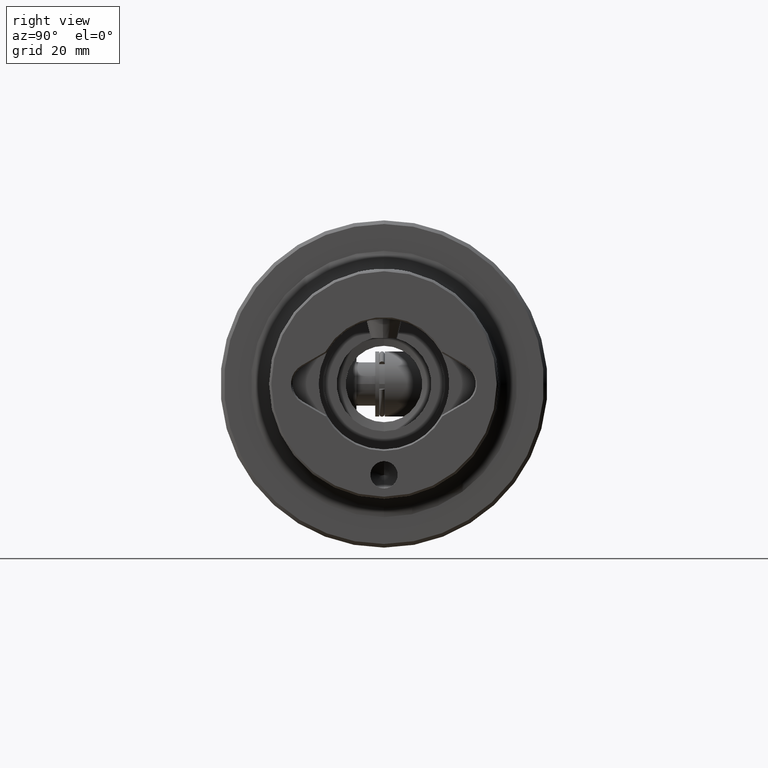
[diagram: clean part render]
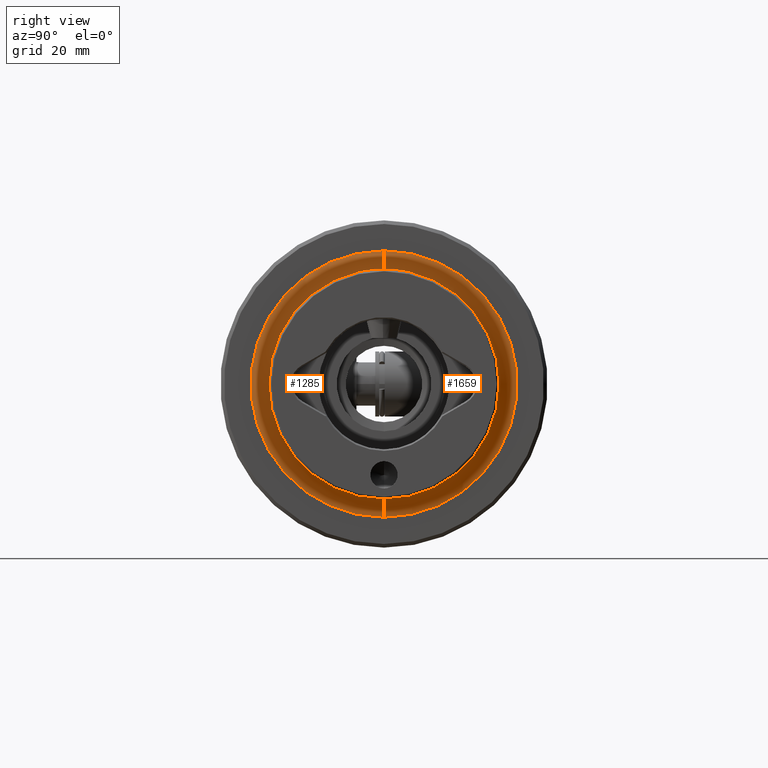
[diagram: same view with one multi-face feature highlighted, each face labeled with its STEP entity id]
A machine part, right view. The highlighted faces form ONE feature: a constant-radius fillet chain: 2 tangent blend faces with common blend radius 5 mm. The faces share edges in the B-rep.
Their STEP definitions:
[1] entity #1659 (Torus):
#49 = CARTESIAN_POINT ( 'NONE',  ( 66.99999999999998600, 0.0000000000000000000, 36.63499999999999800 ) ) ;
#334 = ORIENTED_EDGE ( 'NONE', *, *, #1055, .T. ) ;
#371 = AXIS2_PLACEMENT_3D ( 'NONE', #3556, #1034, #3975 ) ;
#478 = DIRECTION ( 'NONE',  ( 0.0000000000000000000, 0.0000000000000000000, -1.000000000000000000 ) ) ;
#530 = CIRCLE ( 'NONE', #4165, 4.999999999999997300 ) ;
#672 = DIRECTION ( 'NONE',  ( -1.000000000000000000, -0.0000000000000000000, -0.0000000000000000000 ) ) ;
#719 = FACE_OUTER_BOUND ( 'NONE', #1278, .T. ) ;
#788 = EDGE_CURVE ( 'NONE', #1526, #2996, #4029, .T. ) ;
#846 = AXIS2_PLACEMENT_3D ( 'NONE', #49, #3012, #478 ) ;
#859 = CIRCLE ( 'NONE', #846, 4.999999999999997300 ) ;
#1034 = DIRECTION ( 'NONE',  ( -1.000000000000000000, -0.0000000000000000000, -0.0000000000000000000 ) ) ;
#1044 = DIRECTION ( 'NONE',  ( 1.000000000000000000, 0.0000000000000000000, 0.0000000000000000000 ) ) ;
#1055 = EDGE_CURVE ( 'NONE', #1526, #1943, #859, .T. ) ;
#1278 = EDGE_LOOP ( 'NONE', ( #2998, #1292, #334, #2813 ) ) ;
#1292 = ORIENTED_EDGE ( 'NONE', *, *, #788, .F. ) ;
#1331 = CARTESIAN_POINT ( 'NONE',  ( 66.99999999999998600, 0.0000000000000000000, 31.63500000000000500 ) ) ;
#1445 = CARTESIAN_POINT ( 'NONE',  ( 61.99999999999998600, 0.0000000000000000000, 36.63499999999999800 ) ) ;
#1526 = VERTEX_POINT ( 'NONE', #1445 ) ;
#1644 = DIRECTION ( 'NONE',  ( -0.0000000000000000000, 1.000000000000000000, 1.224646799147353200E-016 ) ) ;
#1659 = ADVANCED_FACE ( 'NONE', ( #719 ), #1851, .F. ) ;
#1816 = VERTEX_POINT ( 'NONE', #2936 ) ;
#1851 = TOROIDAL_SURFACE ( 'NONE', #2058, 36.63499999999999800, 5.000000000000000000 ) ;
#1943 = VERTEX_POINT ( 'NONE', #1331 ) ;
#2058 = AXIS2_PLACEMENT_3D ( 'NONE', #4043, #672, #2799 ) ;
#2403 = EDGE_CURVE ( 'NONE', #2996, #1816, #530, .T. ) ;
#2799 = DIRECTION ( 'NONE',  ( 0.0000000000000000000, 0.0000000000000000000, 1.000000000000000000 ) ) ;
#2813 = ORIENTED_EDGE ( 'NONE', *, *, #3452, .F. ) ;
#2936 = CARTESIAN_POINT ( 'NONE',  ( 66.99999999999998600, 3.874170149102652900E-015, -31.63500000000000500 ) ) ;
#2948 = CIRCLE ( 'NONE', #4108, 31.63500000000000500 ) ;
#2996 = VERTEX_POINT ( 'NONE', #4227 ) ;
#2998 = ORIENTED_EDGE ( 'NONE', *, *, #2403, .F. ) ;
#3012 = DIRECTION ( 'NONE',  ( 0.0000000000000000000, -1.000000000000000000, 0.0000000000000000000 ) ) ;
#3452 = EDGE_CURVE ( 'NONE', #1816, #1943, #2948, .T. ) ;
#3556 = CARTESIAN_POINT ( 'NONE',  ( 61.99999999999998600, 0.0000000000000000000, 0.0000000000000000000 ) ) ;
#3564 = CARTESIAN_POINT ( 'NONE',  ( 66.99999999999998600, 0.0000000000000000000, 0.0000000000000000000 ) ) ;
#3975 = DIRECTION ( 'NONE',  ( 0.0000000000000000000, 0.0000000000000000000, 1.000000000000000000 ) ) ;
#3986 = DIRECTION ( 'NONE',  ( 0.0000000000000000000, 0.0000000000000000000, 1.000000000000000000 ) ) ;
#4029 = CIRCLE ( 'NONE', #371, 36.63499999999999800 ) ;
#4043 = CARTESIAN_POINT ( 'NONE',  ( 66.99999999999998600, 0.0000000000000000000, 0.0000000000000000000 ) ) ;
#4108 = AXIS2_PLACEMENT_3D ( 'NONE', #3564, #1044, #3986 ) ;
#4165 = AXIS2_PLACEMENT_3D ( 'NONE', #4174, #1644, #4597 ) ;
#4174 = CARTESIAN_POINT ( 'NONE',  ( 66.99999999999998600, 4.486493548676328700E-015, -36.63499999999999800 ) ) ;
#4227 = CARTESIAN_POINT ( 'NONE',  ( 61.99999999999998600, 4.486493548676328700E-015, -36.63499999999999800 ) ) ;
#4597 = DIRECTION ( 'NONE',  ( 0.0000000000000000000, -1.224646799147354200E-016, 1.000000000000000000 ) ) ;
[2] entity #1285 (Torus):
#49 = CARTESIAN_POINT ( 'NONE',  ( 66.99999999999998600, 0.0000000000000000000, 36.63499999999999800 ) ) ;
#181 = AXIS2_PLACEMENT_3D ( 'NONE', #4034, #4467, #2789 ) ;
#315 = TOROIDAL_SURFACE ( 'NONE', #181, 36.63499999999999800, 5.000000000000000000 ) ;
#458 = CIRCLE ( 'NONE', #2644, 31.63500000000000500 ) ;
#478 = DIRECTION ( 'NONE',  ( 0.0000000000000000000, 0.0000000000000000000, -1.000000000000000000 ) ) ;
#530 = CIRCLE ( 'NONE', #4165, 4.999999999999997300 ) ;
#846 = AXIS2_PLACEMENT_3D ( 'NONE', #49, #3012, #478 ) ;
#859 = CIRCLE ( 'NONE', #846, 4.999999999999997300 ) ;
#989 = ORIENTED_EDGE ( 'NONE', *, *, #3066, .F. ) ;
#1055 = EDGE_CURVE ( 'NONE', #1526, #1943, #859, .T. ) ;
#1285 = ADVANCED_FACE ( 'NONE', ( #1855 ), #315, .F. ) ;
#1331 = CARTESIAN_POINT ( 'NONE',  ( 66.99999999999998600, 0.0000000000000000000, 31.63500000000000500 ) ) ;
#1443 = CIRCLE ( 'NONE', #5388, 36.63499999999999800 ) ;
#1445 = CARTESIAN_POINT ( 'NONE',  ( 61.99999999999998600, 0.0000000000000000000, 36.63499999999999800 ) ) ;
#1526 = VERTEX_POINT ( 'NONE', #1445 ) ;
#1644 = DIRECTION ( 'NONE',  ( -0.0000000000000000000, 1.000000000000000000, 1.224646799147353200E-016 ) ) ;
#1664 = ORIENTED_EDGE ( 'NONE', *, *, #1055, .F. ) ;
#1714 = EDGE_CURVE ( 'NONE', #1943, #1816, #458, .T. ) ;
#1770 = DIRECTION ( 'NONE',  ( -1.000000000000000000, -0.0000000000000000000, -0.0000000000000000000 ) ) ;
#1816 = VERTEX_POINT ( 'NONE', #2936 ) ;
#1837 = EDGE_LOOP ( 'NONE', ( #989, #5441, #3907, #1664 ) ) ;
#1855 = FACE_OUTER_BOUND ( 'NONE', #1837, .T. ) ;
#1943 = VERTEX_POINT ( 'NONE', #1331 ) ;
#2403 = EDGE_CURVE ( 'NONE', #2996, #1816, #530, .T. ) ;
#2422 = DIRECTION ( 'NONE',  ( 1.000000000000000000, 0.0000000000000000000, 0.0000000000000000000 ) ) ;
#2644 = AXIS2_PLACEMENT_3D ( 'NONE', #4930, #2422, #5352 ) ;
#2789 = DIRECTION ( 'NONE',  ( 0.0000000000000000000, 0.0000000000000000000, 1.000000000000000000 ) ) ;
#2936 = CARTESIAN_POINT ( 'NONE',  ( 66.99999999999998600, 3.874170149102652900E-015, -31.63500000000000500 ) ) ;
#2996 = VERTEX_POINT ( 'NONE', #4227 ) ;
#3012 = DIRECTION ( 'NONE',  ( 0.0000000000000000000, -1.000000000000000000, 0.0000000000000000000 ) ) ;
#3066 = EDGE_CURVE ( 'NONE', #2996, #1526, #1443, .T. ) ;
#3907 = ORIENTED_EDGE ( 'NONE', *, *, #1714, .F. ) ;
#4034 = CARTESIAN_POINT ( 'NONE',  ( 66.99999999999998600, 0.0000000000000000000, 0.0000000000000000000 ) ) ;
#4165 = AXIS2_PLACEMENT_3D ( 'NONE', #4174, #1644, #4597 ) ;
#4174 = CARTESIAN_POINT ( 'NONE',  ( 66.99999999999998600, 4.486493548676328700E-015, -36.63499999999999800 ) ) ;
#4227 = CARTESIAN_POINT ( 'NONE',  ( 61.99999999999998600, 4.486493548676328700E-015, -36.63499999999999800 ) ) ;
#4289 = CARTESIAN_POINT ( 'NONE',  ( 61.99999999999998600, 0.0000000000000000000, 0.0000000000000000000 ) ) ;
#4467 = DIRECTION ( 'NONE',  ( -1.000000000000000000, -0.0000000000000000000, -0.0000000000000000000 ) ) ;
#4597 = DIRECTION ( 'NONE',  ( 0.0000000000000000000, -1.224646799147354200E-016, 1.000000000000000000 ) ) ;
#4705 = DIRECTION ( 'NONE',  ( 0.0000000000000000000, 0.0000000000000000000, 1.000000000000000000 ) ) ;
#4930 = CARTESIAN_POINT ( 'NONE',  ( 66.99999999999998600, 0.0000000000000000000, 0.0000000000000000000 ) ) ;
#5352 = DIRECTION ( 'NONE',  ( 0.0000000000000000000, 0.0000000000000000000, 1.000000000000000000 ) ) ;
#5388 = AXIS2_PLACEMENT_3D ( 'NONE', #4289, #1770, #4705 ) ;
#5441 = ORIENTED_EDGE ( 'NONE', *, *, #2403, .T. ) ;